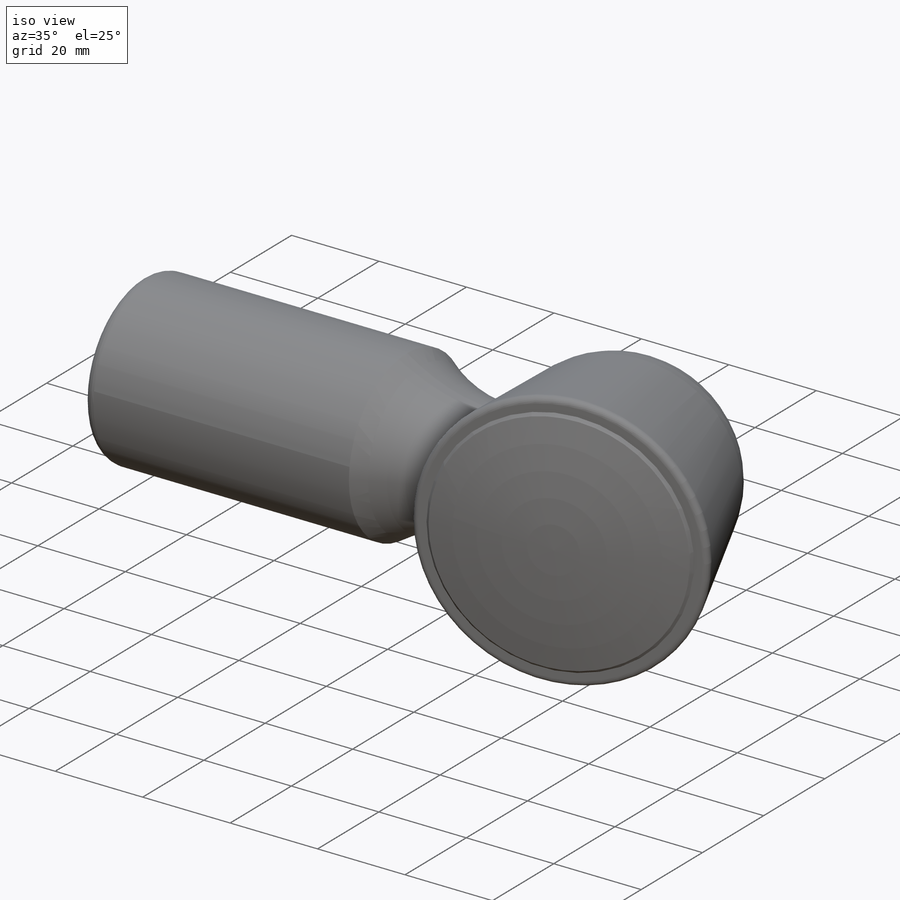
[diagram: iso view]
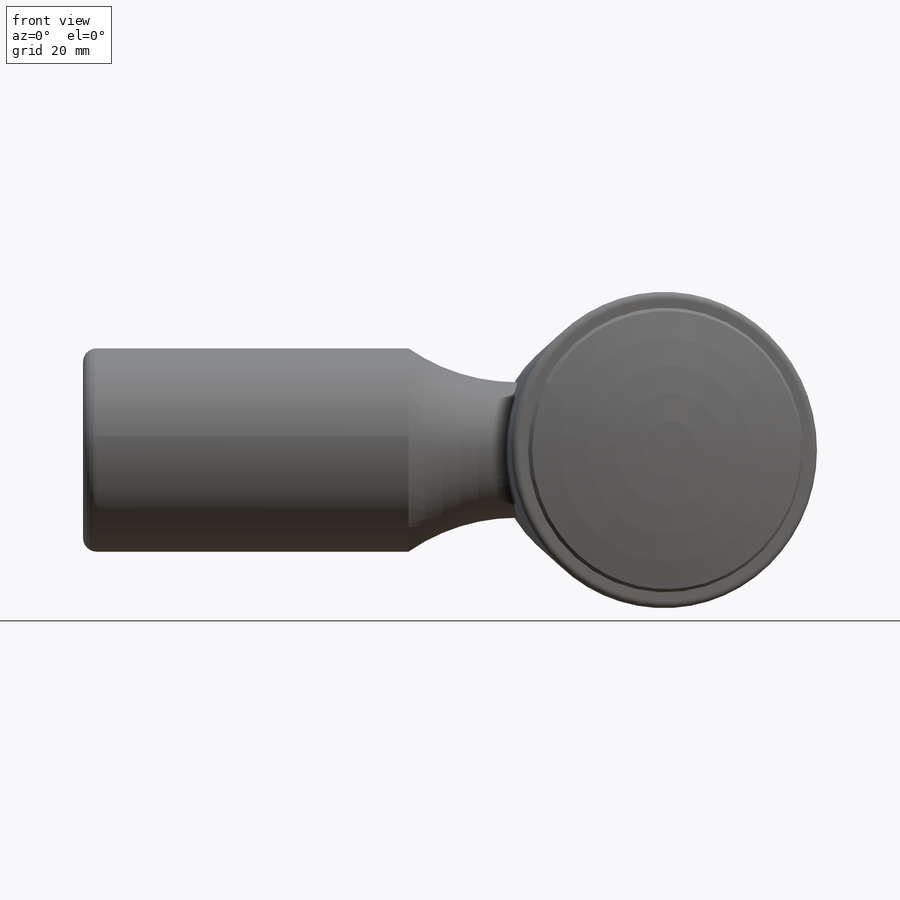
[diagram: front view]
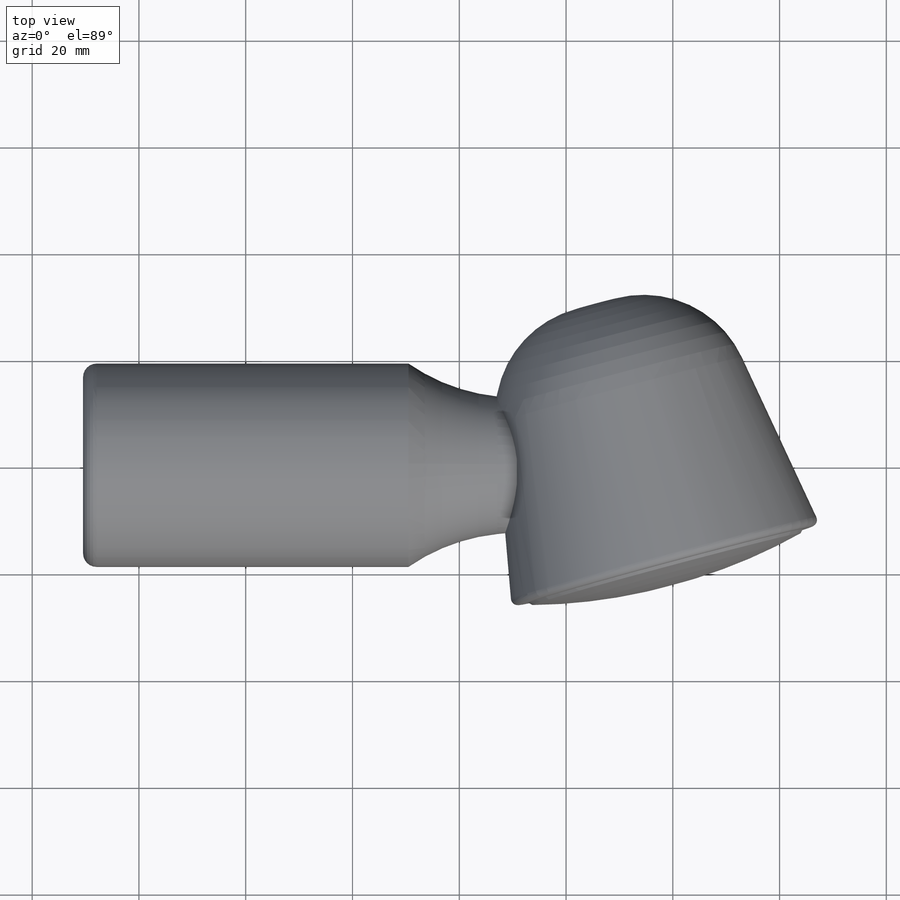
[diagram: top view]
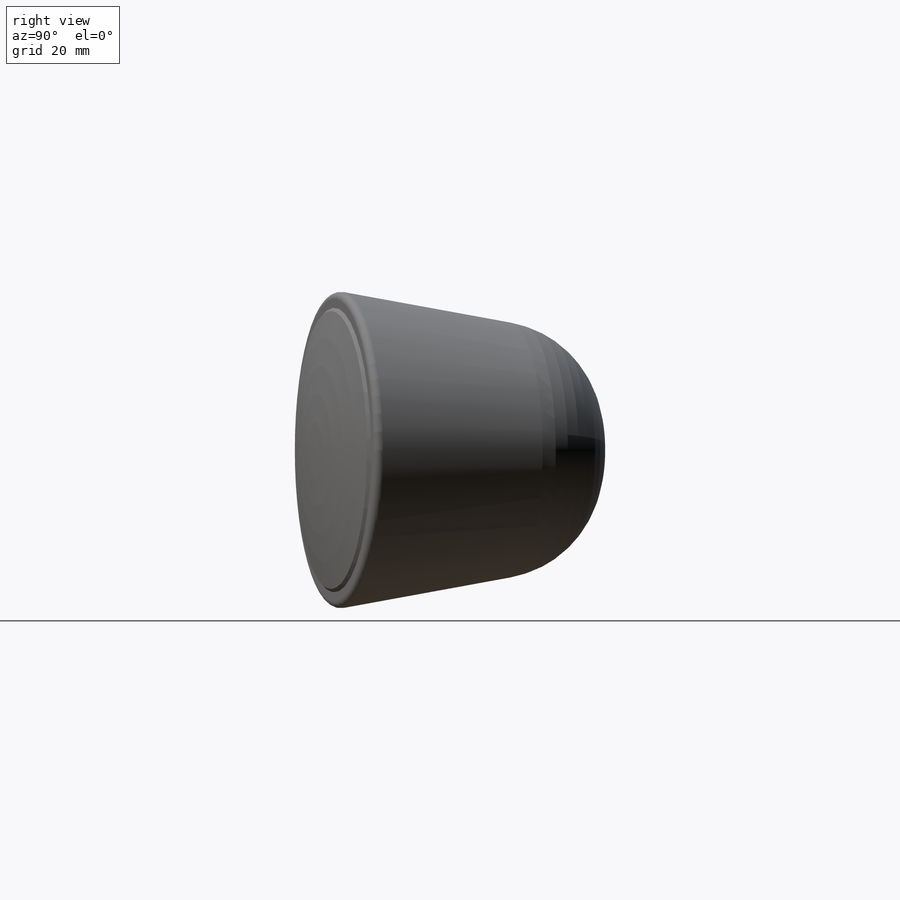
[diagram: right view]
SOLIDWORKS PART (.sldprt)
format: sldprt  version: not decoded by parser v0  size: 387,584 bytes
history: native  units: mm
features: sketch x8, fillet x5, extrude x3, plane x2, cut_extrude x2, material x1, revolve x1 (+13 scaffold rows collapsed)
feature tree (35):
  scaffold x13  (default folders/planes/origin — collapsed)
  material  "Material <not specified>"
  sketch  "Sketch1"  dims[D1=38.1mm]
  extrude  "Boss-Extrude1"  Depth=60.96mm
  sketch  "Sketch2"  dims[D1=25.4mm]
  extrude  "Boss-Extrude2"  Depth=20.32mm
  fillet  "Fillet1"  Radius=35.56mm
  sketch  "Sketch3"
  plane  "Plane1"
  sketch  "Sketch4"  dims[D1=50.8mm D2=71.12mm]
  extrude  "Boss-Extrude3"  Depth=25.4mm
  fillet  "Fillet2"  Radius=20.32mm
  fillet  "Fillet3"  Radius=1.27mm
  sketch  "Sketch5"  dims[D1=50.8mm]
  cut_extrude  "Cut-Extrude1"  Depth=15.24mm
  fillet  "Fillet4"  Radius=6.35mm
  sketch  "Sketch6"
  plane  "Plane2"
  sketch  "Sketch7"  dims[D5=101.6mm D1=3.81mm D2=0.635mm D3=0.635mm D4=1.27mm D6=1.27mm]
  revolve  "Revolve1"  Angle=360deg
  fillet  "Fillet5"  Radius=2.54mm
  sketch  "Sketch8"  dims[D1=25.4mm]
  cut_extrude  "Cut-Extrude2"  Depth=25.4mm
decode coverage: 17 of 19 modeling features carry decoded parameters
note: suppression state not decoded; provenance and decode notes live in map.json
